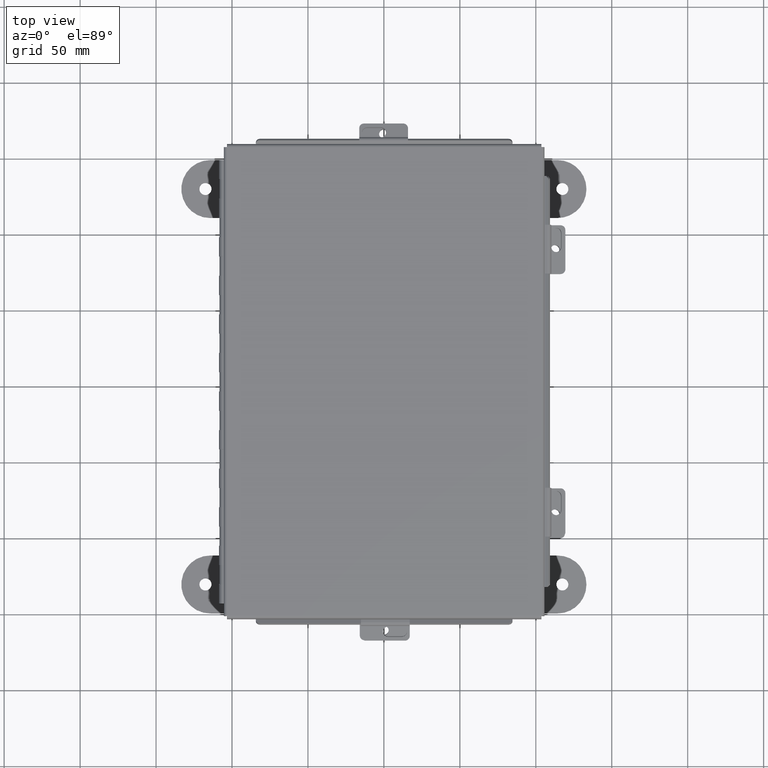
[diagram: clean part render]
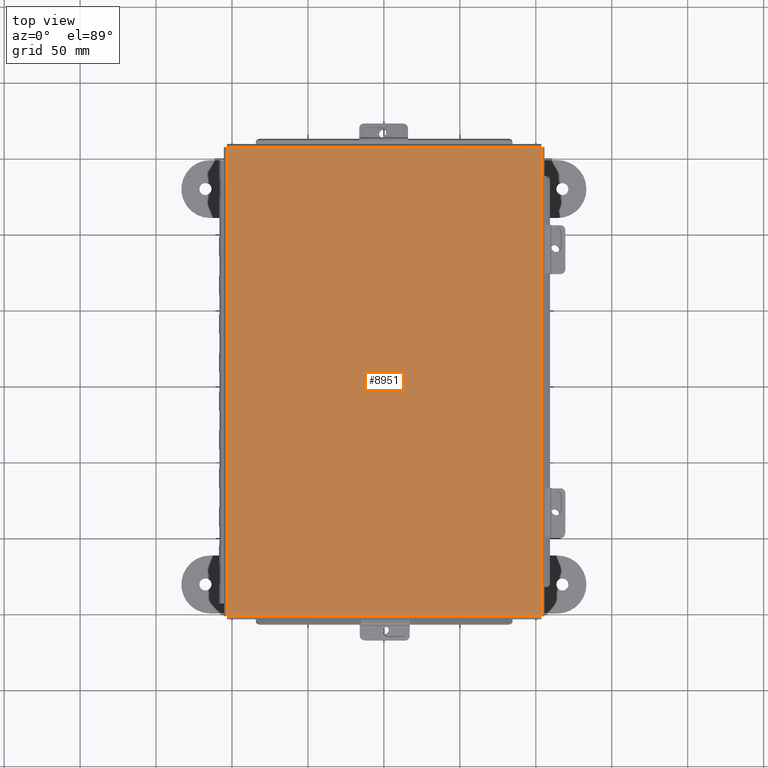
[diagram: same view with one face highlighted and labeled with its STEP entity id]
A machine part, top view. The second image highlights one B-rep face of the part: STEP entity #8951.
In plain terms, the highlighted planar face has unit normal (-0, -0, 1).
Its self-contained STEP definition (entity closure, byte-faithful):
#21 = CARTESIAN_POINT ( 'NONE',  ( 4.068550000000013400, 6.074478932188134700, -0.07470000000000015500 ) ) ;
#524 = DIRECTION ( 'NONE',  ( -1.000000000000000000, 1.053430780678039200E-030, -1.183291357831513000E-030 ) ) ;
#1489 = VERTEX_POINT ( 'NONE', #2415 ) ;
#1931 = DIRECTION ( 'NONE',  ( -1.000000000000000000, 1.053430780678039200E-030, -1.183291357831513000E-030 ) ) ;
#2111 = LINE ( 'NONE', #7718, #10718 ) ;
#2415 = CARTESIAN_POINT ( 'NONE',  ( 4.068550000000013400, 6.068549999999999200, -0.07470000000000015500 ) ) ;
#2532 = LINE ( 'NONE', #21, #9055 ) ;
#2824 = EDGE_LOOP ( 'NONE', ( #11440, #12040, #15162, #11533 ) ) ;
#4064 = VECTOR ( 'NONE', #5739, 39.37007874015748100 ) ;
#4955 = EDGE_CURVE ( 'NONE', #9583, #8774, #5373, .T. ) ;
#5246 = CARTESIAN_POINT ( 'NONE',  ( -4.068550000000026800, 6.068549999999999200, -0.07469999999999907300 ) ) ;
#5373 = LINE ( 'NONE', #12841, #11094 ) ;
#5739 = DIRECTION ( 'NONE',  ( 1.000000000000000000, -1.053430780678039200E-030, 1.183291357831513000E-030 ) ) ;
#6516 = CARTESIAN_POINT ( 'NONE',  ( -4.068550000000025900, -6.068550000000001000, -0.07470000000000015500 ) ) ;
#7311 = LINE ( 'NONE', #14285, #4064 ) ;
#7323 = DIRECTION ( 'NONE',  ( 1.102734587254376400E-030, -1.000000000000000000, 7.543482406175925400E-030 ) ) ;
#7718 = CARTESIAN_POINT ( 'NONE',  ( 4.074478932188148900, -6.068550000000001000, -0.07470000000000015500 ) ) ;
#7964 = CARTESIAN_POINT ( 'NONE',  ( 0.0000000000000000000, 0.0000000000000000000, -0.07470000000000015500 ) ) ;
#8013 = PLANE ( 'NONE',  #8367 ) ;
#8292 = CARTESIAN_POINT ( 'NONE',  ( 4.068550000000013400, -6.068550000000001000, -0.07470000000000015500 ) ) ;
#8315 = EDGE_CURVE ( 'NONE', #1489, #13404, #2532, .T. ) ;
#8367 = AXIS2_PLACEMENT_3D ( 'NONE', #7964, #9254, #1931 ) ;
#8774 = VERTEX_POINT ( 'NONE', #5246 ) ;
#8951 = ADVANCED_FACE ( 'NONE', ( #13240 ), #8013, .T. ) ;
#9055 = VECTOR ( 'NONE', #7323, 39.37007874015748100 ) ;
#9254 = DIRECTION ( 'NONE',  ( 1.183291357831513000E-030, 7.617438116040365800E-030, -1.000000000000000000 ) ) ;
#9583 = VERTEX_POINT ( 'NONE', #6516 ) ;
#9983 = EDGE_CURVE ( 'NONE', #13404, #9583, #2111, .T. ) ;
#10718 = VECTOR ( 'NONE', #524, 39.37007874015748100 ) ;
#11094 = VECTOR ( 'NONE', #13196, 39.37007874015748100 ) ;
#11440 = ORIENTED_EDGE ( 'NONE', *, *, #13307, .T. ) ;
#11533 = ORIENTED_EDGE ( 'NONE', *, *, #4955, .T. ) ;
#12040 = ORIENTED_EDGE ( 'NONE', *, *, #8315, .T. ) ;
#12841 = CARTESIAN_POINT ( 'NONE',  ( -4.068550000000025900, -6.074478932188137400, -0.07470000000000015500 ) ) ;
#13196 = DIRECTION ( 'NONE',  ( -1.102734587254376400E-030, 1.000000000000000000, -7.543482406175925400E-030 ) ) ;
#13240 = FACE_OUTER_BOUND ( 'NONE', #2824, .T. ) ;
#13307 = EDGE_CURVE ( 'NONE', #8774, #1489, #7311, .T. ) ;
#13404 = VERTEX_POINT ( 'NONE', #8292 ) ;
#14285 = CARTESIAN_POINT ( 'NONE',  ( -4.074478932188162300, 6.068549999999999200, -0.07469999999999907300 ) ) ;
#15162 = ORIENTED_EDGE ( 'NONE', *, *, #9983, .T. ) ;